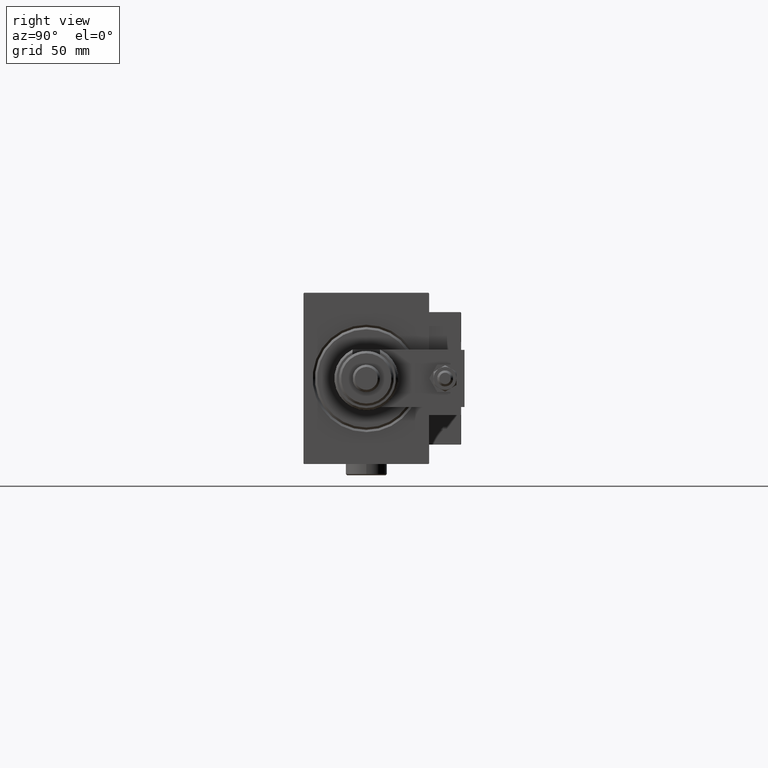
[diagram: clean part render]
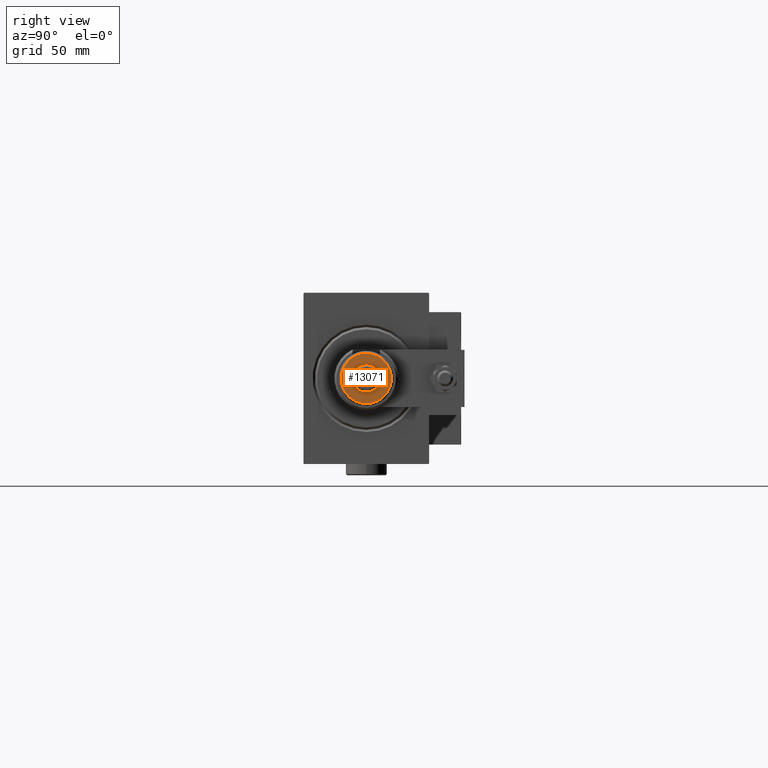
[diagram: same view with one face highlighted and labeled with its STEP entity id]
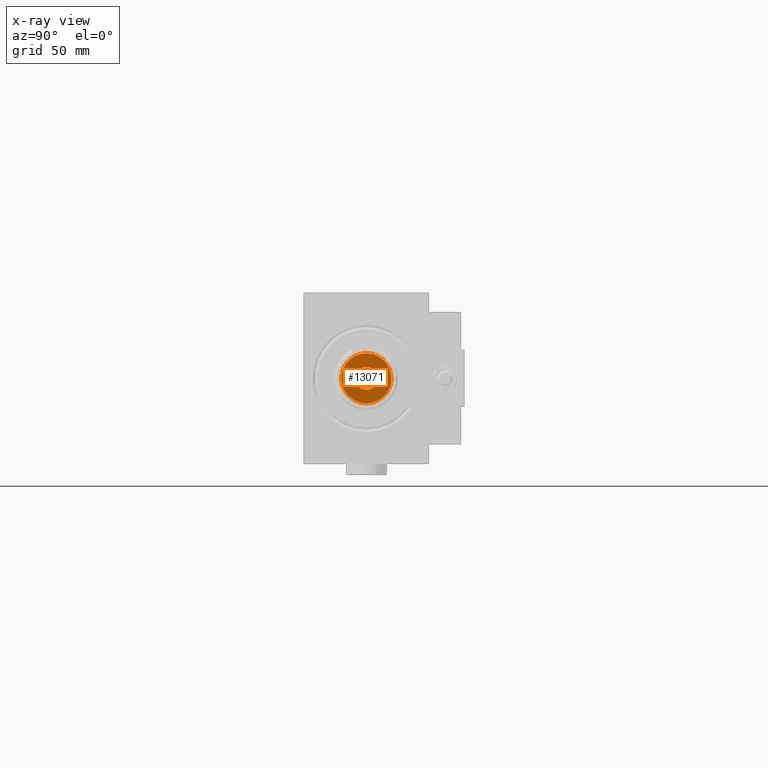
[diagram: x-ray of the same camera — body ghosted, the highlighted face saturated]
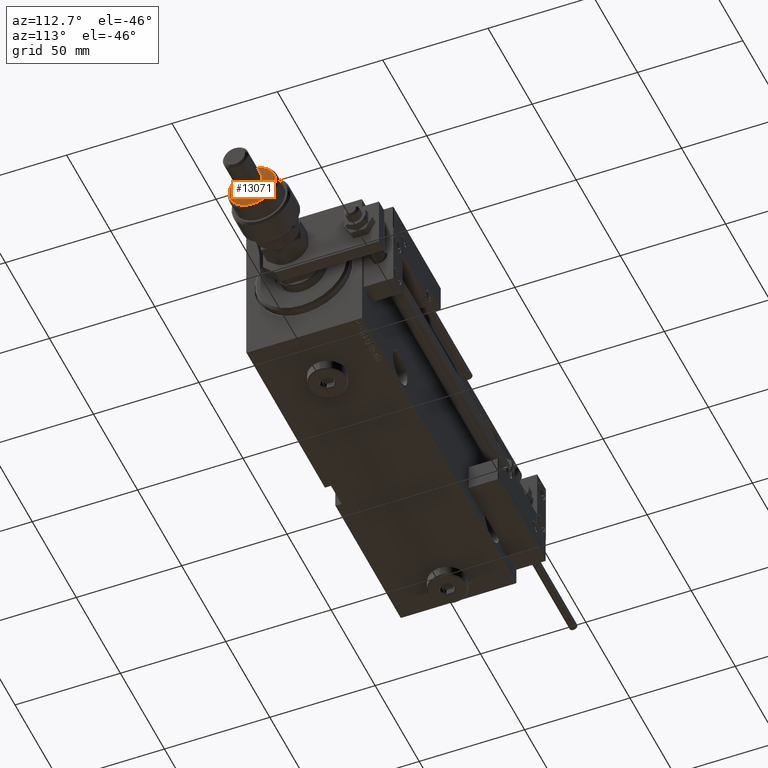
[diagram: same view with one face highlighted and labeled with its STEP entity id]
A machine part, right view. The second image highlights one B-rep face of the part: STEP entity #13071.
The next image is the same camera in x-ray: the body ghosted, the highlighted face saturated — about 0% of this face is hidden behind the body in this view.
A second angle (auxiliary view) of the same face is appended — the face is thin or edge-on in the first view.
In plain terms, the highlighted planar face has unit normal (1, 0, -0).
Its self-contained STEP definition (entity closure, byte-faithful):
#1543 = ORIENTED_EDGE ( 'NONE', *, *, #3984, .F. ) ;
#2581 = EDGE_CURVE ( 'NONE', #54006, #24741, #5966, .T. ) ;
#3771 = VERTEX_POINT ( 'NONE', #43509 ) ;
#3984 = EDGE_CURVE ( 'NONE', #51719, #3771, #14559, .T. ) ;
#4395 = EDGE_LOOP ( 'NONE', ( #50159, #39091 ) ) ;
#4500 = ORIENTED_EDGE ( 'NONE', *, *, #13137, .F. ) ;
#4679 = DIRECTION ( 'NONE',  ( 1.000000000000000000, 0.000000000000000000, 0.000000000000000000 ) ) ;
#5110 = AXIS2_PLACEMENT_3D ( 'NONE', #32854, #37523, #4679 ) ;
#5966 = CIRCLE ( 'NONE', #43541, 10.99999999999999645 ) ;
#7729 = DIRECTION ( 'NONE',  ( 1.000000000000000000, 0.000000000000000000, 0.000000000000000000 ) ) ;
#11801 = DIRECTION ( 'NONE',  ( 1.000000000000000000, 0.000000000000000000, -0.000000000000000000 ) ) ;
#13071 = ADVANCED_FACE ( 'NONE', ( #24119, #36986 ), #32333, .T. ) ;
#13137 = EDGE_CURVE ( 'NONE', #3771, #51719, #48762, .T. ) ;
#13458 = DIRECTION ( 'NONE',  ( 1.000000000000000000, 0.000000000000000000, 0.000000000000000000 ) ) ;
#14559 = CIRCLE ( 'NONE', #42527, 5.000000000000000000 ) ;
#16902 = CARTESIAN_POINT ( 'NONE',  ( 5.000000000000000000, 6.123233995736766282E-16, 22.00000000000000000 ) ) ;
#23600 = CARTESIAN_POINT ( 'NONE',  ( 0.000000000000000000, 0.000000000000000000, 22.00000000000000000 ) ) ;
#23616 = AXIS2_PLACEMENT_3D ( 'NONE', #40036, #32068, #7729 ) ;
#23863 = DIRECTION ( 'NONE',  ( 0.000000000000000000, 0.000000000000000000, 1.000000000000000000 ) ) ;
#24119 = FACE_OUTER_BOUND ( 'NONE', #4395, .T. ) ;
#24741 = VERTEX_POINT ( 'NONE', #35364 ) ;
#26468 = CARTESIAN_POINT ( 'NONE',  ( 0.000000000000000000, 0.000000000000000000, 22.00000000000000000 ) ) ;
#30409 = DIRECTION ( 'NONE',  ( 0.000000000000000000, 0.000000000000000000, 1.000000000000000000 ) ) ;
#30444 = AXIS2_PLACEMENT_3D ( 'NONE', #23600, #23863, #11801 ) ;
#30968 = CARTESIAN_POINT ( 'NONE',  ( 0.000000000000000000, 0.000000000000000000, 22.00000000000000000 ) ) ;
#32068 = DIRECTION ( 'NONE',  ( 0.000000000000000000, 0.000000000000000000, 1.000000000000000000 ) ) ;
#32333 = PLANE ( 'NONE',  #30444 ) ;
#32854 = CARTESIAN_POINT ( 'NONE',  ( 0.000000000000000000, 0.000000000000000000, 22.00000000000000000 ) ) ;
#33197 = CIRCLE ( 'NONE', #23616, 10.99999999999999645 ) ;
#35364 = CARTESIAN_POINT ( 'NONE',  ( -10.99999999999999645, 0.000000000000000000, 22.00000000000000000 ) ) ;
#36986 = FACE_BOUND ( 'NONE', #46400, .T. ) ;
#37523 = DIRECTION ( 'NONE',  ( 0.000000000000000000, 0.000000000000000000, 1.000000000000000000 ) ) ;
#39069 = DIRECTION ( 'NONE',  ( 0.000000000000000000, 0.000000000000000000, 1.000000000000000000 ) ) ;
#39091 = ORIENTED_EDGE ( 'NONE', *, *, #2581, .T. ) ;
#40036 = CARTESIAN_POINT ( 'NONE',  ( 0.000000000000000000, 0.000000000000000000, 22.00000000000000000 ) ) ;
#42064 = EDGE_CURVE ( 'NONE', #24741, #54006, #33197, .T. ) ;
#42527 = AXIS2_PLACEMENT_3D ( 'NONE', #26468, #39069, #43159 ) ;
#43159 = DIRECTION ( 'NONE',  ( 1.000000000000000000, 0.000000000000000000, 0.000000000000000000 ) ) ;
#43509 = CARTESIAN_POINT ( 'NONE',  ( -5.000000000000000000, 0.000000000000000000, 22.00000000000000000 ) ) ;
#43541 = AXIS2_PLACEMENT_3D ( 'NONE', #30968, #30409, #13458 ) ;
#46400 = EDGE_LOOP ( 'NONE', ( #4500, #1543 ) ) ;
#48762 = CIRCLE ( 'NONE', #5110, 5.000000000000000000 ) ;
#48792 = CARTESIAN_POINT ( 'NONE',  ( 10.99999999999999645, 1.408343819019456176E-15, 22.00000000000000000 ) ) ;
#50159 = ORIENTED_EDGE ( 'NONE', *, *, #42064, .T. ) ;
#51719 = VERTEX_POINT ( 'NONE', #16902 ) ;
#54006 = VERTEX_POINT ( 'NONE', #48792 ) ;